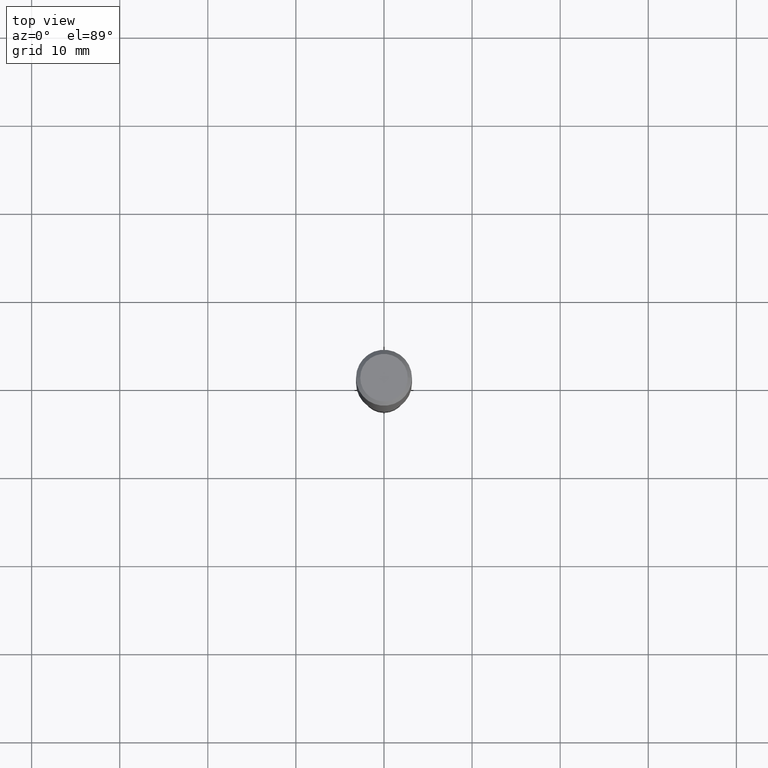
[diagram: clean part render]
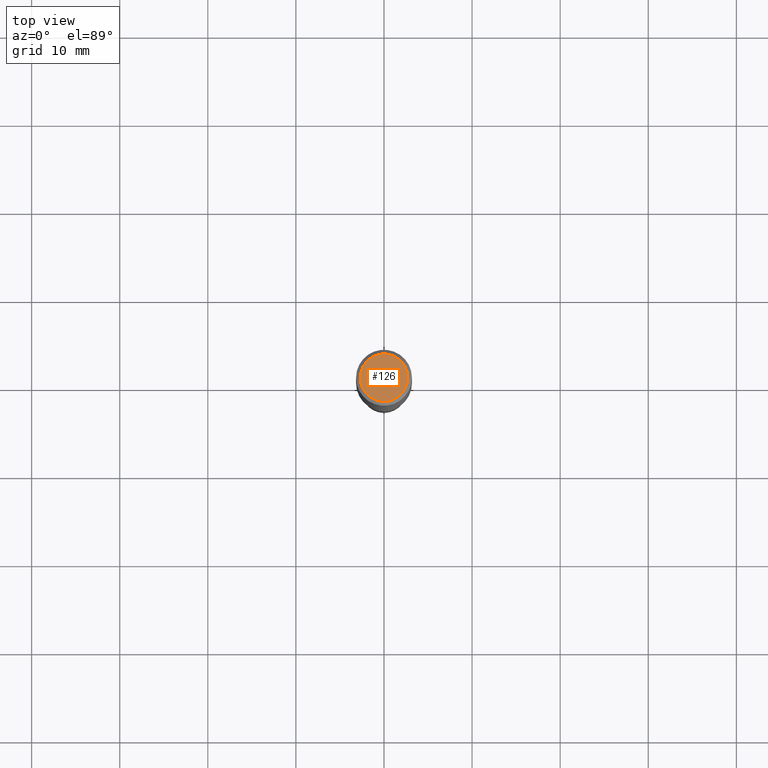
[diagram: same view with one face highlighted and labeled with its STEP entity id]
A machine part, top view. The second image highlights one B-rep face of the part: STEP entity #126.
In plain terms, the highlighted planar face has unit normal (0, -0, -1).
Its self-contained STEP definition (entity closure, byte-faithful):
#3 = AXIS2_PLACEMENT_3D ( 'NONE', #314, #171, #247 ) ;
#37 = PLANE ( 'NONE',  #339 ) ;
#49 = CARTESIAN_POINT ( 'NONE',  ( 0.1062499999999999972, -8.259777185439880671E-16, -3.903561672281638287E-17 ) ) ;
#54 = CARTESIAN_POINT ( 'NONE',  ( 4.773019151292986598E-46, -6.814606366898298634E-32, -1.951780836141093396E-17 ) ) ;
#72 = FACE_OUTER_BOUND ( 'NONE', #441, .T. ) ;
#94 = CIRCLE ( 'NONE', #3, 0.1062499999999999972 ) ;
#125 = CIRCLE ( 'NONE', #415, 0.1062499999999999972 ) ;
#126 = ADVANCED_FACE ( 'NONE', ( #72 ), #37, .F. ) ;
#139 = ORIENTED_EDGE ( 'NONE', *, *, #458, .T. ) ;
#146 = ORIENTED_EDGE ( 'NONE', *, *, #266, .T. ) ;
#152 = CARTESIAN_POINT ( 'NONE',  ( -0.1062499999999999972, 7.746724220558198188E-16, -3.903561672282716808E-17 ) ) ;
#164 = VERTEX_POINT ( 'NONE', #152 ) ;
#171 = DIRECTION ( 'NONE',  ( -2.445468806185136597E-29, 3.491481338843145583E-15, 1.000000000000000000 ) ) ;
#219 = VERTEX_POINT ( 'NONE', #49 ) ;
#232 = DIRECTION ( 'NONE',  ( -1.000000000000000000, 6.982962677686265922E-15, -4.876176775795935793E-29 ) ) ;
#247 = DIRECTION ( 'NONE',  ( 1.000000000000000000, -6.982962677686266711E-15, 4.874146000987428094E-29 ) ) ;
#256 = DIRECTION ( 'NONE',  ( 1.000000000000000000, -6.982962677686266711E-15, 4.874146000987428094E-29 ) ) ;
#266 = EDGE_CURVE ( 'NONE', #219, #164, #94, .T. ) ;
#270 = DIRECTION ( 'NONE',  ( 2.438088387897960049E-29, -3.491481338843145188E-15, -1.000000000000000000 ) ) ;
#314 = CARTESIAN_POINT ( 'NONE',  ( 9.546038302585973196E-46, -1.362921273379659727E-31, -3.903561672282186792E-17 ) ) ;
#330 = DIRECTION ( 'NONE',  ( -2.445468806185136597E-29, 3.491481338843145583E-15, 1.000000000000000000 ) ) ;
#339 = AXIS2_PLACEMENT_3D ( 'NONE', #54, #270, #232 ) ;
#415 = AXIS2_PLACEMENT_3D ( 'NONE', #446, #330, #256 ) ;
#441 = EDGE_LOOP ( 'NONE', ( #139, #146 ) ) ;
#446 = CARTESIAN_POINT ( 'NONE',  ( 9.546038302585973196E-46, -1.362921273379659727E-31, -3.903561672282186792E-17 ) ) ;
#458 = EDGE_CURVE ( 'NONE', #164, #219, #125, .T. ) ;